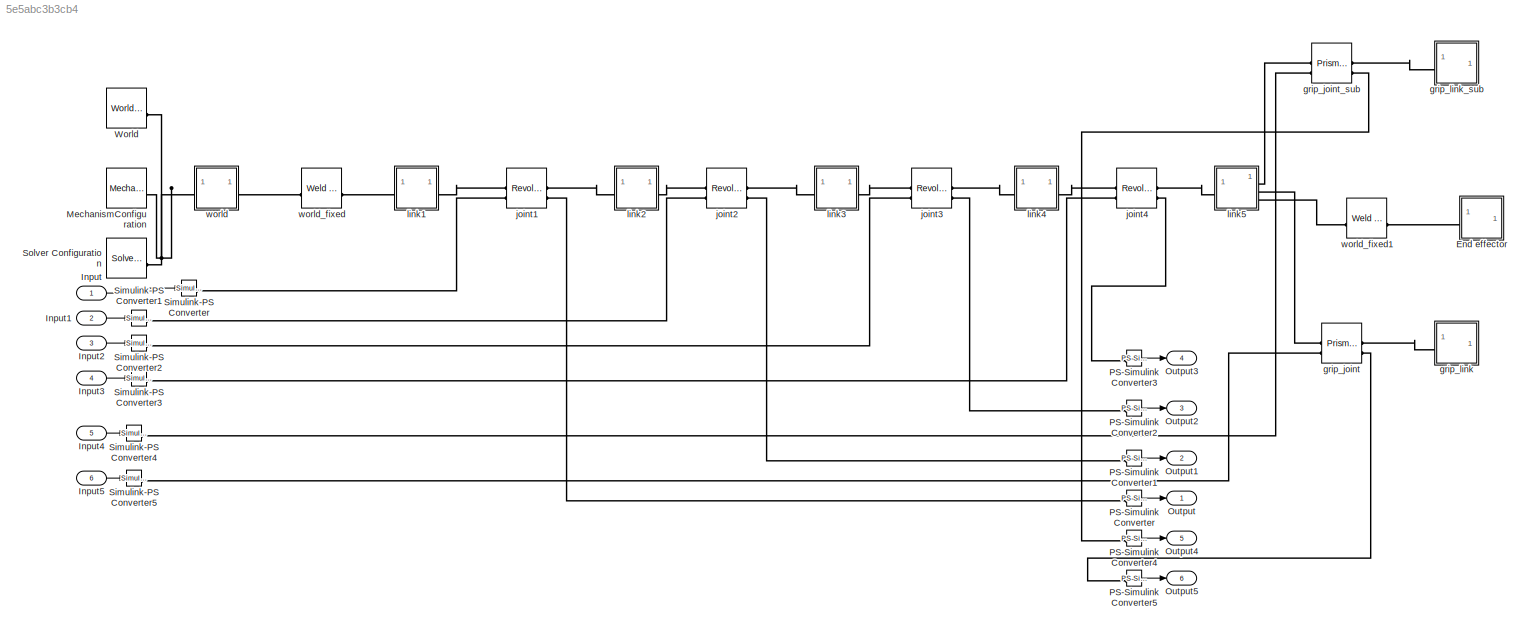
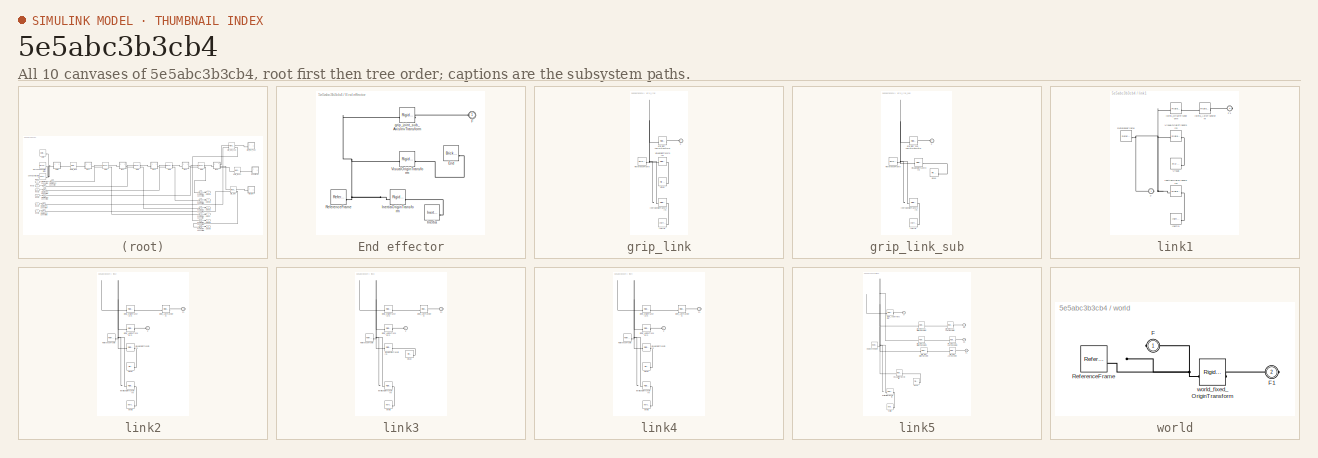
[diagram: thumbnail index - all 10 canvases of the model, root first then tree order]
MODEL slx_5e5abc3b3cb4
KIND model
CONFIG AbsTol = auto
CONFIG EnableMultiTasking = off
CONFIG FixedStep = auto
CONFIG MaxStep = auto
CONFIG MinStep = auto
CONFIG RelTol = 1e-3
CONFIG SampleTimeConstraint = Unconstrained
CONFIG SolverName = VariableStepAuto
CONFIG StartTime = 0.0
CONFIG StopTime = 10.0
BLOCK [SubSystem] End effector
BLOCK [Reference] End effector/End   REF=sm_lib/Body Elements/Brick Solid
  SourceBlock = sm_lib/Body Elements/Brick Solid
  SourceType = Brick Solid
BLOCK [PMIOPort] End effector/F
  Side = Left
BLOCK [Reference] End effector/Inertia  REF=sm_lib/Body Elements/Inertia
  SourceBlock = sm_lib/Body Elements/Inertia
  SourceType = Inertia
BLOCK [Reference] End effector/InertiaOriginTransform  REF=sm_lib/Frames and
Transforms/Rigid
Transform
  SourceBlock = sm_lib/Frames and\nTransforms/Rigid\nTransform
  SourceType = Rigid\nTransform
BLOCK [Reference] End effector/ReferenceFrame  REF=sm_lib/Frames and
Transforms/Reference
Frame
  SourceBlock = sm_lib/Frames and\nTransforms/Reference\nFrame
  SourceType = Reference\nFrame
BLOCK [Reference] End effector/VisualOriginTransform  REF=sm_lib/Frames and
Transforms/Rigid
Transform
  SourceBlock = sm_lib/Frames and\nTransforms/Rigid\nTransform
  SourceType = Rigid\nTransform
BLOCK [Reference] End effector/grip_joint_sub_AxisInvTransform  REF=sm_lib/Frames and
Transforms/Rigid
Transform
  SourceBlock = sm_lib/Frames and\nTransforms/Rigid\nTransform
  SourceType = Rigid\nTransform
BLOCK [Inport] Input
BLOCK [Inport] Input1
  Port = 2
BLOCK [Inport] Input2
  Port = 3
BLOCK [Inport] Input3
  Port = 4
BLOCK [Inport] Input4
  Port = 5
BLOCK [Inport] Input5
  Port = 6
BLOCK [Reference] MechanismConfiguration  REF=sm_lib/Utilities/Mechanism
Configuration
  SourceBlock = sm_lib/Utilities/Mechanism\nConfiguration
  SourceType = Mechanism\nConfiguration
BLOCK [Outport] Output
BLOCK [Outport] Output1
  Port = 2
BLOCK [Outport] Output2
  Port = 3
BLOCK [Outport] Output3
  Port = 4
BLOCK [Outport] Output4
  Port = 5
BLOCK [Outport] Output5
  Port = 6
BLOCK [Reference] PS-Simulink Converter  REF=nesl_utility/PS-Simulink
Converter
  SourceBlock = nesl_utility/PS-Simulink\nConverter
  SourceType = PS-Simulink\nConverter
BLOCK [Reference] PS-Simulink Converter1  REF=nesl_utility/PS-Simulink
Converter
  SourceBlock = nesl_utility/PS-Simulink\nConverter
  SourceType = PS-Simulink\nConverter
BLOCK [Reference] PS-Simulink Converter2  REF=nesl_utility/PS-Simulink
Converter
  SourceBlock = nesl_utility/PS-Simulink\nConverter
  SourceType = PS-Simulink\nConverter
BLOCK [Reference] PS-Simulink Converter3  REF=nesl_utility/PS-Simulink
Converter
  SourceBlock = nesl_utility/PS-Simulink\nConverter
  SourceType = PS-Simulink\nConverter
BLOCK [Reference] PS-Simulink Converter4  REF=nesl_utility/PS-Simulink
Converter
  SourceBlock = nesl_utility/PS-Simulink\nConverter
  SourceType = PS-Simulink\nConverter
BLOCK [Reference] PS-Simulink Converter5  REF=nesl_utility/PS-Simulink
Converter
  SourceBlock = nesl_utility/PS-Simulink\nConverter
  SourceType = PS-Simulink\nConverter
BLOCK [Reference] Simulink-PS Converter  REF=nesl_utility/Simulink-PS
Converter
  SourceBlock = nesl_utility/Simulink-PS\nConverter
  SourceType = Simulink-PS\nConverter
BLOCK [Reference] Simulink-PS Converter1  REF=nesl_utility/Simulink-PS
Converter
  SourceBlock = nesl_utility/Simulink-PS\nConverter
  SourceType = Simulink-PS\nConverter
BLOCK [Reference] Simulink-PS Converter2  REF=nesl_utility/Simulink-PS
Converter
  SourceBlock = nesl_utility/Simulink-PS\nConverter
  SourceType = Simulink-PS\nConverter
BLOCK [Reference] Simulink-PS Converter3  REF=nesl_utility/Simulink-PS
Converter
  SourceBlock = nesl_utility/Simulink-PS\nConverter
  SourceType = Simulink-PS\nConverter
BLOCK [Reference] Simulink-PS Converter4  REF=nesl_utility/Simulink-PS
Converter
  SourceBlock = nesl_utility/Simulink-PS\nConverter
  SourceType = Simulink-PS\nConverter
BLOCK [Reference] Simulink-PS Converter5  REF=nesl_utility/Simulink-PS
Converter
  SourceBlock = nesl_utility/Simulink-PS\nConverter
  SourceType = Simulink-PS\nConverter
BLOCK [Reference] Solver Configuration  REF=nesl_utility/Solver
Configuration
  SourceBlock = nesl_utility/Solver\nConfiguration
  SourceType = Solver\nConfiguration
BLOCK [Reference] World  REF=sm_lib/Frames and
Transforms/World Frame
  SourceBlock = sm_lib/Frames and\nTransforms/World Frame
  SourceType = World Frame
BLOCK [Reference] grip_joint  REF=sm_lib/Joints/Prismatic
Joint
  SourceBlock = sm_lib/Joints/Prismatic\nJoint
  SourceType = Prismatic\nJoint
BLOCK [Reference] grip_joint_sub  REF=sm_lib/Joints/Prismatic
Joint
  SourceBlock = sm_lib/Joints/Prismatic\nJoint
  SourceType = Prismatic\nJoint
BLOCK [SubSystem] grip_link
BLOCK [PMIOPort] grip_link/F
  Side = Left
BLOCK [Reference] grip_link/Inertia  REF=sm_lib/Body Elements/Inertia
  SourceBlock = sm_lib/Body Elements/Inertia
  SourceType = Inertia
BLOCK [Reference] grip_link/InertiaOriginTransform  REF=sm_lib/Frames and
Transforms/Rigid
Transform
  SourceBlock = sm_lib/Frames and\nTransforms/Rigid\nTransform
  SourceType = Rigid\nTransform
BLOCK [Reference] grip_link/ReferenceFrame  REF=sm_lib/Frames and
Transforms/Reference
Frame
  SourceBlock = sm_lib/Frames and\nTransforms/Reference\nFrame
  SourceType = Reference\nFrame
BLOCK [Reference] grip_link/Visual  REF=sm_lib/Body Elements/File Solid
  SourceBlock = sm_lib/Body Elements/File Solid
  SourceType = File Solid
BLOCK [Reference] grip_link/VisualOriginTransform  REF=sm_lib/Frames and
Transforms/Rigid
Transform
  SourceBlock = sm_lib/Frames and\nTransforms/Rigid\nTransform
  SourceType = Rigid\nTransform
BLOCK [Reference] grip_link/grip_joint_AxisInvTransform  REF=sm_lib/Frames and
Transforms/Rigid
Transform
  SourceBlock = sm_lib/Frames and\nTransforms/Rigid\nTransform
  SourceType = Rigid\nTransform
BLOCK [SubSystem] grip_link_sub
BLOCK [PMIOPort] grip_link_sub/F
  Side = Left
BLOCK [Reference] grip_link_sub/Inertia  REF=sm_lib/Body Elements/Inertia
  SourceBlock = sm_lib/Body Elements/Inertia
  SourceType = Inertia
BLOCK [Reference] grip_link_sub/InertiaOriginTransform  REF=sm_lib/Frames and
Transforms/Rigid
Transform
  SourceBlock = sm_lib/Frames and\nTransforms/Rigid\nTransform
  SourceType = Rigid\nTransform
BLOCK [Reference] grip_link_sub/ReferenceFrame  REF=sm_lib/Frames and
Transforms/Reference
Frame
  SourceBlock = sm_lib/Frames and\nTransforms/Reference\nFrame
  SourceType = Reference\nFrame
BLOCK [Reference] grip_link_sub/Visual  REF=sm_lib/Body Elements/File Solid
  SourceBlock = sm_lib/Body Elements/File Solid
  SourceType = File Solid
BLOCK [Reference] grip_link_sub/VisualOriginTransform  REF=sm_lib/Frames and
Transforms/Rigid
Transform
  SourceBlock = sm_lib/Frames and\nTransforms/Rigid\nTransform
  SourceType = Rigid\nTransform
BLOCK [Reference] grip_link_sub/grip_joint_sub_AxisInvTransform  REF=sm_lib/Frames and
Transforms/Rigid
Transform
  SourceBlock = sm_lib/Frames and\nTransforms/Rigid\nTransform
  SourceType = Rigid\nTransform
BLOCK [Reference] joint1  REF=sm_lib/Joints/Revolute Joint
  SourceBlock = sm_lib/Joints/Revolute Joint
  SourceType = Revolute Joint
BLOCK [Reference] joint2  REF=sm_lib/Joints/Revolute Joint
  SourceBlock = sm_lib/Joints/Revolute Joint
  SourceType = Revolute Joint
BLOCK [Reference] joint3  REF=sm_lib/Joints/Revolute Joint
  SourceBlock = sm_lib/Joints/Revolute Joint
  SourceType = Revolute Joint
BLOCK [Reference] joint4  REF=sm_lib/Joints/Revolute Joint
  SourceBlock = sm_lib/Joints/Revolute Joint
  SourceType = Revolute Joint
BLOCK [SubSystem] link1
BLOCK [PMIOPort] link1/F
  Side = Left
BLOCK [PMIOPort] link1/F1
  Port = 2
  Side = Right
BLOCK [Reference] link1/Inertia  REF=sm_lib/Body Elements/Inertia
  SourceBlock = sm_lib/Body Elements/Inertia
  SourceType = Inertia
BLOCK [Reference] link1/InertiaOriginTransform  REF=sm_lib/Frames and
Transforms/Rigid
Transform
  SourceBlock = sm_lib/Frames and\nTransforms/Rigid\nTransform
  SourceType = Rigid\nTransform
BLOCK [Reference] link1/ReferenceFrame  REF=sm_lib/Frames and
Transforms/Reference
Frame
  SourceBlock = sm_lib/Frames and\nTransforms/Reference\nFrame
  SourceType = Reference\nFrame
BLOCK [Reference] link1/Visual  REF=sm_lib/Body Elements/File Solid
  SourceBlock = sm_lib/Body Elements/File Solid
  SourceType = File Solid
BLOCK [Reference] link1/VisualOriginTransform  REF=sm_lib/Frames and
Transforms/Rigid
Transform
  SourceBlock = sm_lib/Frames and\nTransforms/Rigid\nTransform
  SourceType = Rigid\nTransform
BLOCK [Reference] link1/joint1_AxisTransform  REF=sm_lib/Frames and
Transforms/Rigid
Transform
  SourceBlock = sm_lib/Frames and\nTransforms/Rigid\nTransform
  SourceType = Rigid\nTransform
BLOCK [Reference] link1/joint1_OriginTransform  REF=sm_lib/Frames and
Transforms/Rigid
Transform
  SourceBlock = sm_lib/Frames and\nTransforms/Rigid\nTransform
  SourceType = Rigid\nTransform
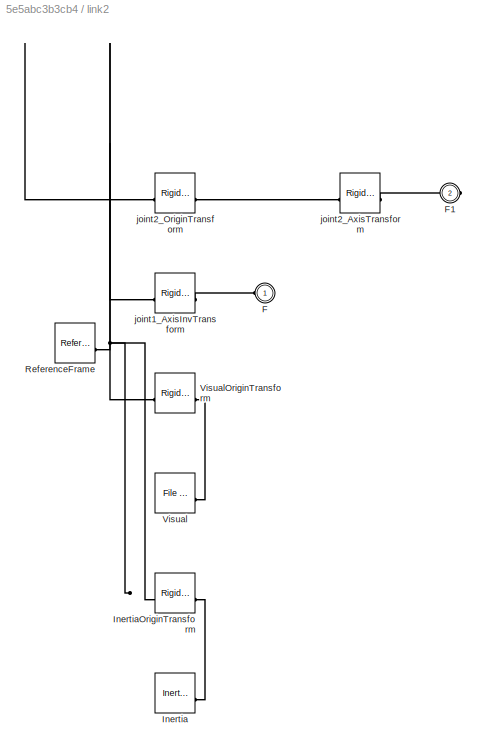
BLOCK [SubSystem] link2
BLOCK [PMIOPort] link2/F
  Side = Left
BLOCK [PMIOPort] link2/F1
  Port = 2
  Side = Right
BLOCK [Reference] link2/Inertia  REF=sm_lib/Body Elements/Inertia
  SourceBlock = sm_lib/Body Elements/Inertia
  SourceType = Inertia
BLOCK [Reference] link2/InertiaOriginTransform  REF=sm_lib/Frames and
Transforms/Rigid
Transform
  SourceBlock = sm_lib/Frames and\nTransforms/Rigid\nTransform
  SourceType = Rigid\nTransform
BLOCK [Reference] link2/ReferenceFrame  REF=sm_lib/Frames and
Transforms/Reference
Frame
  SourceBlock = sm_lib/Frames and\nTransforms/Reference\nFrame
  SourceType = Reference\nFrame
BLOCK [Reference] link2/Visual  REF=sm_lib/Body Elements/File Solid
  SourceBlock = sm_lib/Body Elements/File Solid
  SourceType = File Solid
BLOCK [Reference] link2/VisualOriginTransform  REF=sm_lib/Frames and
Transforms/Rigid
Transform
  SourceBlock = sm_lib/Frames and\nTransforms/Rigid\nTransform
  SourceType = Rigid\nTransform
BLOCK [Reference] link2/joint1_AxisInvTransform  REF=sm_lib/Frames and
Transforms/Rigid
Transform
  SourceBlock = sm_lib/Frames and\nTransforms/Rigid\nTransform
  SourceType = Rigid\nTransform
BLOCK [Reference] link2/joint2_AxisTransform  REF=sm_lib/Frames and
Transforms/Rigid
Transform
  SourceBlock = sm_lib/Frames and\nTransforms/Rigid\nTransform
  SourceType = Rigid\nTransform
BLOCK [Reference] link2/joint2_OriginTransform  REF=sm_lib/Frames and
Transforms/Rigid
Transform
  SourceBlock = sm_lib/Frames and\nTransforms/Rigid\nTransform
  SourceType = Rigid\nTransform
BLOCK [SubSystem] link3
BLOCK [PMIOPort] link3/F
  Side = Left
BLOCK [PMIOPort] link3/F1
  Port = 2
  Side = Right
BLOCK [Reference] link3/Inertia  REF=sm_lib/Body Elements/Inertia
  SourceBlock = sm_lib/Body Elements/Inertia
  SourceType = Inertia
BLOCK [Reference] link3/InertiaOriginTransform  REF=sm_lib/Frames and
Transforms/Rigid
Transform
  SourceBlock = sm_lib/Frames and\nTransforms/Rigid\nTransform
  SourceType = Rigid\nTransform
BLOCK [Reference] link3/ReferenceFrame  REF=sm_lib/Frames and
Transforms/Reference
Frame
  SourceBlock = sm_lib/Frames and\nTransforms/Reference\nFrame
  SourceType = Reference\nFrame
BLOCK [Reference] link3/Visual  REF=sm_lib/Body Elements/File Solid
  SourceBlock = sm_lib/Body Elements/File Solid
  SourceType = File Solid
BLOCK [Reference] link3/VisualOriginTransform  REF=sm_lib/Frames and
Transforms/Rigid
Transform
  SourceBlock = sm_lib/Frames and\nTransforms/Rigid\nTransform
  SourceType = Rigid\nTransform
BLOCK [Reference] link3/joint2_AxisInvTransform  REF=sm_lib/Frames and
Transforms/Rigid
Transform
  SourceBlock = sm_lib/Frames and\nTransforms/Rigid\nTransform
  SourceType = Rigid\nTransform
BLOCK [Reference] link3/joint3_AxisTransform  REF=sm_lib/Frames and
Transforms/Rigid
Transform
  SourceBlock = sm_lib/Frames and\nTransforms/Rigid\nTransform
  SourceType = Rigid\nTransform
BLOCK [Reference] link3/joint3_OriginTransform  REF=sm_lib/Frames and
Transforms/Rigid
Transform
  SourceBlock = sm_lib/Frames and\nTransforms/Rigid\nTransform
  SourceType = Rigid\nTransform
BLOCK [SubSystem] link4
BLOCK [PMIOPort] link4/F
  Side = Left
BLOCK [PMIOPort] link4/F1
  Port = 2
  Side = Right
BLOCK [Reference] link4/Inertia  REF=sm_lib/Body Elements/Inertia
  SourceBlock = sm_lib/Body Elements/Inertia
  SourceType = Inertia
BLOCK [Reference] link4/InertiaOriginTransform  REF=sm_lib/Frames and
Transforms/Rigid
Transform
  SourceBlock = sm_lib/Frames and\nTransforms/Rigid\nTransform
  SourceType = Rigid\nTransform
BLOCK [Reference] link4/ReferenceFrame  REF=sm_lib/Frames and
Transforms/Reference
Frame
  SourceBlock = sm_lib/Frames and\nTransforms/Reference\nFrame
  SourceType = Reference\nFrame
BLOCK [Reference] link4/Visual  REF=sm_lib/Body Elements/File Solid
  SourceBlock = sm_lib/Body Elements/File Solid
  SourceType = File Solid
BLOCK [Reference] link4/VisualOriginTransform  REF=sm_lib/Frames and
Transforms/Rigid
Transform
  SourceBlock = sm_lib/Frames and\nTransforms/Rigid\nTransform
  SourceType = Rigid\nTransform
BLOCK [Reference] link4/joint3_AxisInvTransform  REF=sm_lib/Frames and
Transforms/Rigid
Transform
  SourceBlock = sm_lib/Frames and\nTransforms/Rigid\nTransform
  SourceType = Rigid\nTransform
BLOCK [Reference] link4/joint4_AxisTransform  REF=sm_lib/Frames and
Transforms/Rigid
Transform
  SourceBlock = sm_lib/Frames and\nTransforms/Rigid\nTransform
  SourceType = Rigid\nTransform
BLOCK [Reference] link4/joint4_OriginTransform  REF=sm_lib/Frames and
Transforms/Rigid
Transform
  SourceBlock = sm_lib/Frames and\nTransforms/Rigid\nTransform
  SourceType = Rigid\nTransform
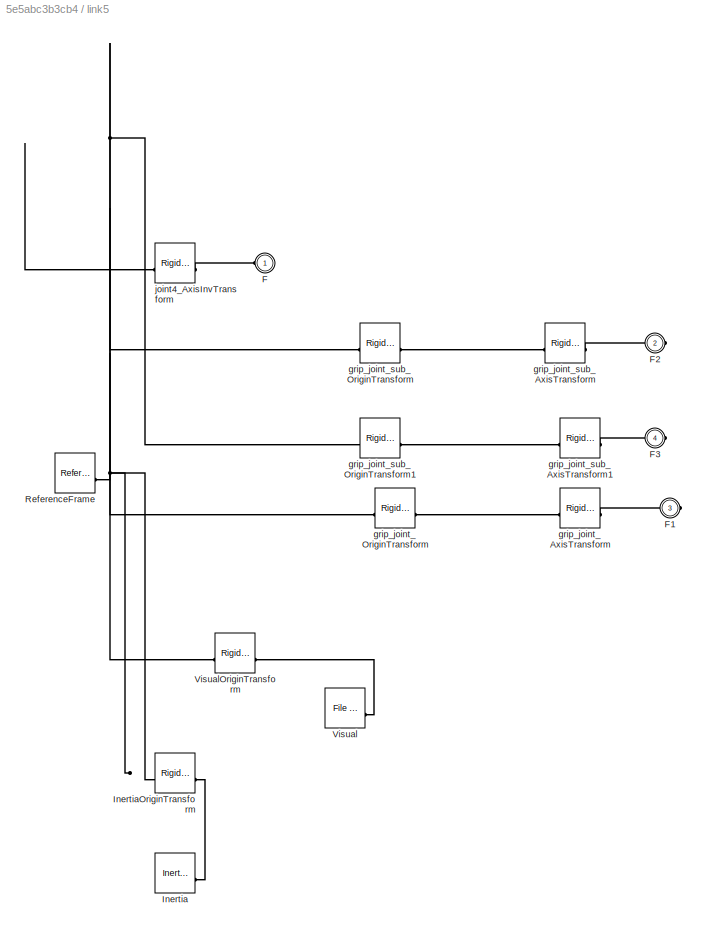
BLOCK [SubSystem] link5
BLOCK [PMIOPort] link5/F
  Side = Left
BLOCK [PMIOPort] link5/F1
  Port = 3
  Side = Right
BLOCK [PMIOPort] link5/F2
  Port = 2
  Side = Right
BLOCK [PMIOPort] link5/F3
  Port = 4
  Side = Right
BLOCK [Reference] link5/Inertia  REF=sm_lib/Body Elements/Inertia
  SourceBlock = sm_lib/Body Elements/Inertia
  SourceType = Inertia
BLOCK [Reference] link5/InertiaOriginTransform  REF=sm_lib/Frames and
Transforms/Rigid
Transform
  SourceBlock = sm_lib/Frames and\nTransforms/Rigid\nTransform
  SourceType = Rigid\nTransform
BLOCK [Reference] link5/ReferenceFrame  REF=sm_lib/Frames and
Transforms/Reference
Frame
  SourceBlock = sm_lib/Frames and\nTransforms/Reference\nFrame
  SourceType = Reference\nFrame
BLOCK [Reference] link5/Visual  REF=sm_lib/Body Elements/File Solid
  SourceBlock = sm_lib/Body Elements/File Solid
  SourceType = File Solid
BLOCK [Reference] link5/VisualOriginTransform  REF=sm_lib/Frames and
Transforms/Rigid
Transform
  SourceBlock = sm_lib/Frames and\nTransforms/Rigid\nTransform
  SourceType = Rigid\nTransform
BLOCK [Reference] link5/grip_joint_AxisTransform  REF=sm_lib/Frames and
Transforms/Rigid
Transform
  SourceBlock = sm_lib/Frames and\nTransforms/Rigid\nTransform
  SourceType = Rigid\nTransform
BLOCK [Reference] link5/grip_joint_OriginTransform  REF=sm_lib/Frames and
Transforms/Rigid
Transform
  SourceBlock = sm_lib/Frames and\nTransforms/Rigid\nTransform
  SourceType = Rigid\nTransform
BLOCK [Reference] link5/grip_joint_sub_AxisTransform  REF=sm_lib/Frames and
Transforms/Rigid
Transform
  SourceBlock = sm_lib/Frames and\nTransforms/Rigid\nTransform
  SourceType = Rigid\nTransform
BLOCK [Reference] link5/grip_joint_sub_AxisTransform1  REF=sm_lib/Frames and
Transforms/Rigid
Transform
  SourceBlock = sm_lib/Frames and\nTransforms/Rigid\nTransform
  SourceType = Rigid\nTransform
BLOCK [Reference] link5/grip_joint_sub_OriginTransform  REF=sm_lib/Frames and
Transforms/Rigid
Transform
  SourceBlock = sm_lib/Frames and\nTransforms/Rigid\nTransform
  SourceType = Rigid\nTransform
BLOCK [Reference] link5/grip_joint_sub_OriginTransform1  REF=sm_lib/Frames and
Transforms/Rigid
Transform
  SourceBlock = sm_lib/Frames and\nTransforms/Rigid\nTransform
  SourceType = Rigid\nTransform
BLOCK [Reference] link5/joint4_AxisInvTransform  REF=sm_lib/Frames and
Transforms/Rigid
Transform
  SourceBlock = sm_lib/Frames and\nTransforms/Rigid\nTransform
  SourceType = Rigid\nTransform
BLOCK [SubSystem] world
BLOCK [PMIOPort] world/F
  Side = Left
BLOCK [PMIOPort] world/F1
  Port = 2
  Side = Right
BLOCK [Reference] world/ReferenceFrame  REF=sm_lib/Frames and
Transforms/Reference
Frame
  SourceBlock = sm_lib/Frames and\nTransforms/Reference\nFrame
  SourceType = Reference\nFrame
BLOCK [Reference] world/world_fixed_OriginTransform  REF=sm_lib/Frames and
Transforms/Rigid
Transform
  SourceBlock = sm_lib/Frames and\nTransforms/Rigid\nTransform
  SourceType = Rigid\nTransform
BLOCK [Reference] world_fixed  REF=sm_lib/Joints/Weld Joint
  SourceBlock = sm_lib/Joints/Weld Joint
  SourceType = Weld Joint
BLOCK [Reference] world_fixed1  REF=sm_lib/Joints/Weld Joint
  SourceBlock = sm_lib/Joints/Weld Joint
  SourceType = Weld Joint
LINE Input1:1 -> Simulink-PS Converter1:1
LINE Input2:1 -> Simulink-PS Converter2:1
LINE Input3:1 -> Simulink-PS Converter3:1
LINE Input4:1 -> Simulink-PS Converter4:1
LINE Input5:1 -> Simulink-PS Converter5:1
LINE Input:1 -> Simulink-PS Converter:1
LINE PS-Simulink Converter1:1 -> Output1:1
LINE PS-Simulink Converter2:1 -> Output2:1
LINE PS-Simulink Converter3:1 -> Output3:1
LINE PS-Simulink Converter4:1 -> Output4:1
LINE PS-Simulink Converter5:1 -> Output5:1
LINE PS-Simulink Converter:1 -> Output:1
PLINE End effector/End :RConn1 -- End effector/VisualOriginTransform:RConn1
PLINE End effector/F:RConn1 -- End effector/grip_joint_sub_AxisInvTransform:RConn1
PLINE End effector/Inertia:RConn1 -- End effector/InertiaOriginTransform:RConn1
PNET net1: End effector/InertiaOriginTransform:LConn1 -- End effector/ReferenceFrame:RConn1 -- End effector/VisualOriginTransform:LConn1 -- End effector/grip_joint_sub_AxisInvTransform:LConn1
PLINE End effector:LConn1 -- world_fixed1:RConn1
PNET net2: MechanismConfiguration:RConn1 -- Solver Configuration:RConn1 -- World:RConn1 -- world:LConn1
PLINE PS-Simulink Converter1:LConn1 -- joint2:RConn2
PLINE PS-Simulink Converter2:LConn1 -- joint3:RConn2
PLINE PS-Simulink Converter3:LConn1 -- joint4:RConn2
PLINE PS-Simulink Converter4:LConn1 -- grip_joint_sub:RConn2
PLINE PS-Simulink Converter5:LConn1 -- grip_joint:RConn2
PLINE PS-Simulink Converter:LConn1 -- joint1:RConn2
PLINE Simulink-PS Converter1:RConn1 -- joint2:LConn2
PLINE Simulink-PS Converter2:RConn1 -- joint3:LConn2
PLINE Simulink-PS Converter3:RConn1 -- joint4:LConn2
PLINE Simulink-PS Converter4:RConn1 -- grip_joint_sub:LConn2
PLINE Simulink-PS Converter5:RConn1 -- grip_joint:LConn2
PLINE Simulink-PS Converter:RConn1 -- joint1:LConn2
PLINE grip_joint:LConn1 -- link5:RConn2
PLINE grip_joint:RConn1 -- grip_link:LConn1
PLINE grip_joint_sub:LConn1 -- link5:RConn1
PLINE grip_joint_sub:RConn1 -- grip_link_sub:LConn1
PLINE grip_link/F:RConn1 -- grip_link/grip_joint_AxisInvTransform:RConn1
PLINE grip_link/Inertia:RConn1 -- grip_link/InertiaOriginTransform:RConn1
PNET net3: grip_link/InertiaOriginTransform:LConn1 -- grip_link/ReferenceFrame:RConn1 -- grip_link/VisualOriginTransform:LConn1 -- grip_link/grip_joint_AxisInvTransform:LConn1
PLINE grip_link/Visual:RConn1 -- grip_link/VisualOriginTransform:RConn1
PLINE grip_link_sub/F:RConn1 -- grip_link_sub/grip_joint_sub_AxisInvTransform:RConn1
PLINE grip_link_sub/Inertia:RConn1 -- grip_link_sub/InertiaOriginTransform:RConn1
PNET net4: grip_link_sub/InertiaOriginTransform:LConn1 -- grip_link_sub/ReferenceFrame:RConn1 -- grip_link_sub/VisualOriginTransform:LConn1 -- grip_link_sub/grip_joint_sub_AxisInvTransform:LConn1
PLINE grip_link_sub/Visual:RConn1 -- grip_link_sub/VisualOriginTransform:RConn1
PLINE joint1:LConn1 -- link1:RConn1
PLINE joint1:RConn1 -- link2:LConn1
PLINE joint2:LConn1 -- link2:RConn1
PLINE joint2:RConn1 -- link3:LConn1
PLINE joint3:LConn1 -- link3:RConn1
PLINE joint3:RConn1 -- link4:LConn1
PLINE joint4:LConn1 -- link4:RConn1
PLINE joint4:RConn1 -- link5:LConn1
PLINE link1/F1:RConn1 -- link1/joint1_AxisTransform:RConn1
PNET net5: link1/F:RConn1 -- link1/InertiaOriginTransform:LConn1 -- link1/ReferenceFrame:RConn1 -- link1/VisualOriginTransform:LConn1 -- link1/joint1_OriginTransform:LConn1
PLINE link1/Inertia:RConn1 -- link1/InertiaOriginTransform:RConn1
PLINE link1/Visual:RConn1 -- link1/VisualOriginTransform:RConn1
PLINE link1/joint1_AxisTransform:LConn1 -- link1/joint1_OriginTransform:RConn1
PLINE link1:LConn1 -- world_fixed:RConn1
PLINE link2/F1:RConn1 -- link2/joint2_AxisTransform:RConn1
PLINE link2/F:RConn1 -- link2/joint1_AxisInvTransform:RConn1
PLINE link2/Inertia:RConn1 -- link2/InertiaOriginTransform:RConn1
PNET net6: link2/InertiaOriginTransform:LConn1 -- link2/ReferenceFrame:RConn1 -- link2/VisualOriginTransform:LConn1 -- link2/joint1_AxisInvTransform:LConn1 -- link2/joint2_OriginTransform:LConn1
PLINE link2/Visual:RConn1 -- link2/VisualOriginTransform:RConn1
PLINE link2/joint2_AxisTransform:LConn1 -- link2/joint2_OriginTransform:RConn1
PLINE link3/F1:RConn1 -- link3/joint3_AxisTransform:RConn1
PLINE link3/F:RConn1 -- link3/joint2_AxisInvTransform:RConn1
PLINE link3/Inertia:RConn1 -- link3/InertiaOriginTransform:RConn1
PNET net7: link3/InertiaOriginTransform:LConn1 -- link3/ReferenceFrame:RConn1 -- link3/VisualOriginTransform:LConn1 -- link3/joint2_AxisInvTransform:LConn1 -- link3/joint3_OriginTransform:LConn1
PLINE link3/Visual:RConn1 -- link3/VisualOriginTransform:RConn1
PLINE link3/joint3_AxisTransform:LConn1 -- link3/joint3_OriginTransform:RConn1
PLINE link4/F1:RConn1 -- link4/joint4_AxisTransform:RConn1
PLINE link4/F:RConn1 -- link4/joint3_AxisInvTransform:RConn1
PLINE link4/Inertia:RConn1 -- link4/InertiaOriginTransform:RConn1
PNET net8: link4/InertiaOriginTransform:LConn1 -- link4/ReferenceFrame:RConn1 -- link4/VisualOriginTransform:LConn1 -- link4/joint3_AxisInvTransform:LConn1 -- link4/joint4_OriginTransform:LConn1
PLINE link4/Visual:RConn1 -- link4/VisualOriginTransform:RConn1
PLINE link4/joint4_AxisTransform:LConn1 -- link4/joint4_OriginTransform:RConn1
PLINE link5/F1:RConn1 -- link5/grip_joint_AxisTransform:RConn1
PLINE link5/F2:RConn1 -- link5/grip_joint_sub_AxisTransform:RConn1
PLINE link5/F3:RConn1 -- link5/grip_joint_sub_AxisTransform1:RConn1
PLINE link5/F:RConn1 -- link5/joint4_AxisInvTransform:RConn1
PLINE link5/Inertia:RConn1 -- link5/InertiaOriginTransform:RConn1
PNET net9: link5/InertiaOriginTransform:LConn1 -- link5/ReferenceFrame:RConn1 -- link5/VisualOriginTransform:LConn1 -- link5/grip_joint_OriginTransform:LConn1 -- link5/grip_joint_sub_OriginTransform1:LConn1 -- link5/grip_joint_sub_OriginTransform:LConn1 -- link5/joint4_AxisInvTransform:LConn1
PLINE link5/Visual:RConn1 -- link5/VisualOriginTransform:RConn1
PLINE link5/grip_joint_AxisTransform:LConn1 -- link5/grip_joint_OriginTransform:RConn1
PLINE link5/grip_joint_sub_AxisTransform1:LConn1 -- link5/grip_joint_sub_OriginTransform1:RConn1
PLINE link5/grip_joint_sub_AxisTransform:LConn1 -- link5/grip_joint_sub_OriginTransform:RConn1
PLINE link5:RConn3 -- world_fixed1:LConn1
PLINE world/F1:RConn1 -- world/world_fixed_OriginTransform:RConn1
PNET net10: world/F:RConn1 -- world/ReferenceFrame:RConn1 -- world/world_fixed_OriginTransform:LConn1
PLINE world:RConn1 -- world_fixed:LConn1
note: PNET lines group multi-terminal physical nets as a canonical sorted terminal list (undirected conserving connections); 2-terminal nets keep the pairwise PLINE form
